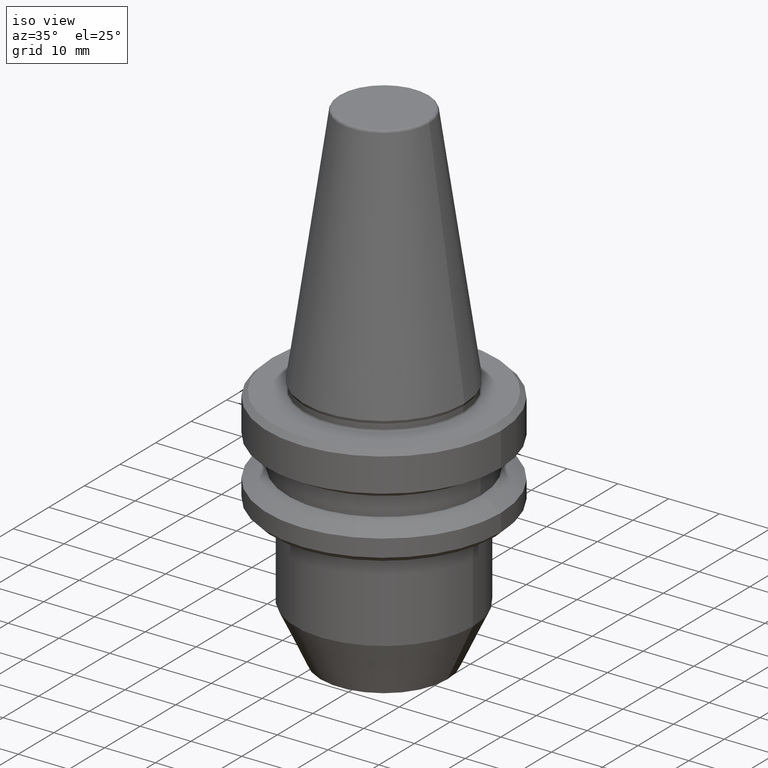
[diagram: clean part render]
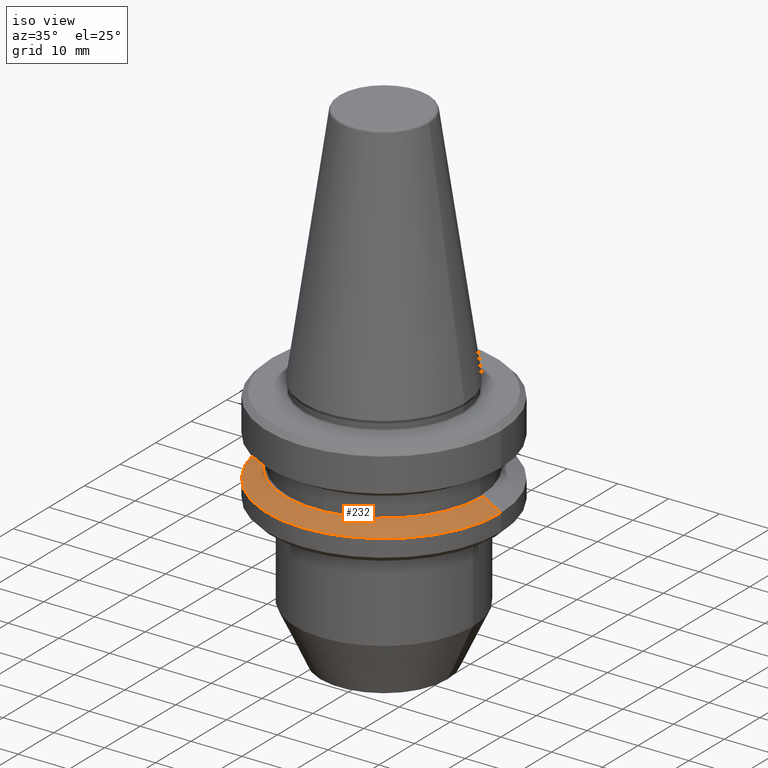
[diagram: same view with one face highlighted and labeled with its STEP entity id]
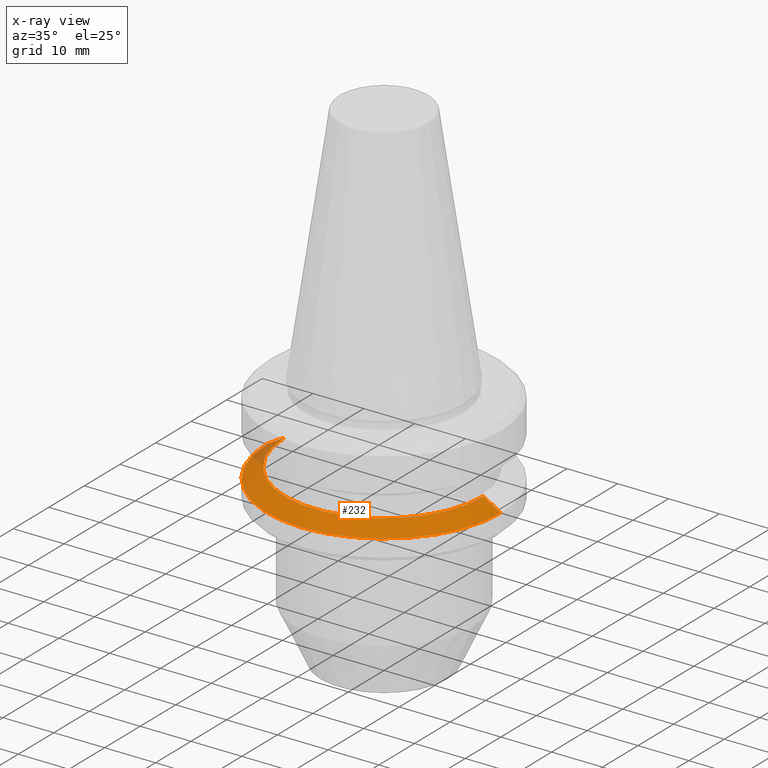
[diagram: x-ray of the same camera — body ghosted, the highlighted face saturated]
A machine part, iso view. The second image highlights one B-rep face of the part: STEP entity #232.
The next image is the same camera in x-ray: the body ghosted, the highlighted face saturated — about 4% of this face is hidden behind the body in this view.
In plain terms, the highlighted conical surface has half-angle 60 deg.
Its self-contained STEP definition (entity closure, byte-faithful):
#8 = ORIENTED_EDGE ( 'NONE', *, *, #460, .F. ) ;
#14 = CARTESIAN_POINT ( 'NONE',  ( 19.53610161513785900, 2.604585034559258400E-015, -15.59999999999983600 ) ) ;
#26 = LINE ( 'NONE', #722, #762 ) ;
#36 = ORIENTED_EDGE ( 'NONE', *, *, #547, .T. ) ;
#41 = CARTESIAN_POINT ( 'NONE',  ( -23.00000000000002100, 2.816687638038915100E-015, -17.59988266494549700 ) ) ;
#80 = DIRECTION ( 'NONE',  ( 0.0000000000000000000, 0.0000000000000000000, -1.000000000000000000 ) ) ;
#96 = AXIS2_PLACEMENT_3D ( 'NONE', #649, #80, #225 ) ;
#105 = CIRCLE ( 'NONE', #310, 23.00000000000002100 ) ;
#130 = AXIS2_PLACEMENT_3D ( 'NONE', #444, #615, #935 ) ;
#156 = DIRECTION ( 'NONE',  ( -0.8660254037844404800, 0.0000000000000000000, -0.4999999999999967800 ) ) ;
#223 = CIRCLE ( 'NONE', #130, 19.53610161513785900 ) ;
#225 = DIRECTION ( 'NONE',  ( -1.000000000000000000, 0.0000000000000000000, 0.0000000000000000000 ) ) ;
#232 = ADVANCED_FACE ( 'NONE', ( #783 ), #750, .T. ) ;
#281 = DIRECTION ( 'NONE',  ( -0.0000000000000000000, -0.0000000000000000000, 1.000000000000000000 ) ) ;
#309 = VERTEX_POINT ( 'NONE', #41 ) ;
#310 = AXIS2_PLACEMENT_3D ( 'NONE', #1001, #281, #456 ) ;
#350 = VECTOR ( 'NONE', #156, 1000.000000000000100 ) ;
#356 = DIRECTION ( 'NONE',  ( 0.8660254037844404800, 1.060575238724909000E-016, -0.4999999999999967800 ) ) ;
#370 = CARTESIAN_POINT ( 'NONE',  ( 23.00000000000002100, 0.0000000000000000000, -17.59988266494549700 ) ) ;
#373 = EDGE_CURVE ( 'NONE', #882, #663, #223, .T. ) ;
#384 = ORIENTED_EDGE ( 'NONE', *, *, #373, .F. ) ;
#410 = ORIENTED_EDGE ( 'NONE', *, *, #877, .T. ) ;
#426 = VERTEX_POINT ( 'NONE', #370 ) ;
#444 = CARTESIAN_POINT ( 'NONE',  ( 0.0000000000000000000, 0.0000000000000000000, -15.59999999999983600 ) ) ;
#456 = DIRECTION ( 'NONE',  ( 1.000000000000000000, 0.0000000000000000000, 0.0000000000000000000 ) ) ;
#459 = EDGE_LOOP ( 'NONE', ( #8, #384, #410, #36 ) ) ;
#460 = EDGE_CURVE ( 'NONE', #663, #426, #26, .T. ) ;
#498 = CARTESIAN_POINT ( 'NONE',  ( -23.00000000000002100, 0.0000000000000000000, -17.59988266494549700 ) ) ;
#547 = EDGE_CURVE ( 'NONE', #309, #426, #105, .T. ) ;
#615 = DIRECTION ( 'NONE',  ( -0.0000000000000000000, -0.0000000000000000000, 1.000000000000000000 ) ) ;
#649 = CARTESIAN_POINT ( 'NONE',  ( 0.0000000000000000000, 0.0000000000000000000, -17.59988266494549700 ) ) ;
#663 = VERTEX_POINT ( 'NONE', #14 ) ;
#722 = CARTESIAN_POINT ( 'NONE',  ( 23.00000000000002100, 2.816687638038915100E-015, -17.59988266494549700 ) ) ;
#750 = CONICAL_SURFACE ( 'NONE', #96, 23.00000000000002100, 1.047197551196601400 ) ;
#762 = VECTOR ( 'NONE', #356, 1000.000000000000100 ) ;
#783 = FACE_OUTER_BOUND ( 'NONE', #459, .T. ) ;
#877 = EDGE_CURVE ( 'NONE', #882, #309, #959, .T. ) ;
#882 = VERTEX_POINT ( 'NONE', #999 ) ;
#935 = DIRECTION ( 'NONE',  ( 1.000000000000000000, 0.0000000000000000000, 0.0000000000000000000 ) ) ;
#959 = LINE ( 'NONE', #498, #350 ) ;
#999 = CARTESIAN_POINT ( 'NONE',  ( -19.53610161513785900, 0.0000000000000000000, -15.59999999999983600 ) ) ;
#1001 = CARTESIAN_POINT ( 'NONE',  ( 0.0000000000000000000, 0.0000000000000000000, -17.59988266494549700 ) ) ;